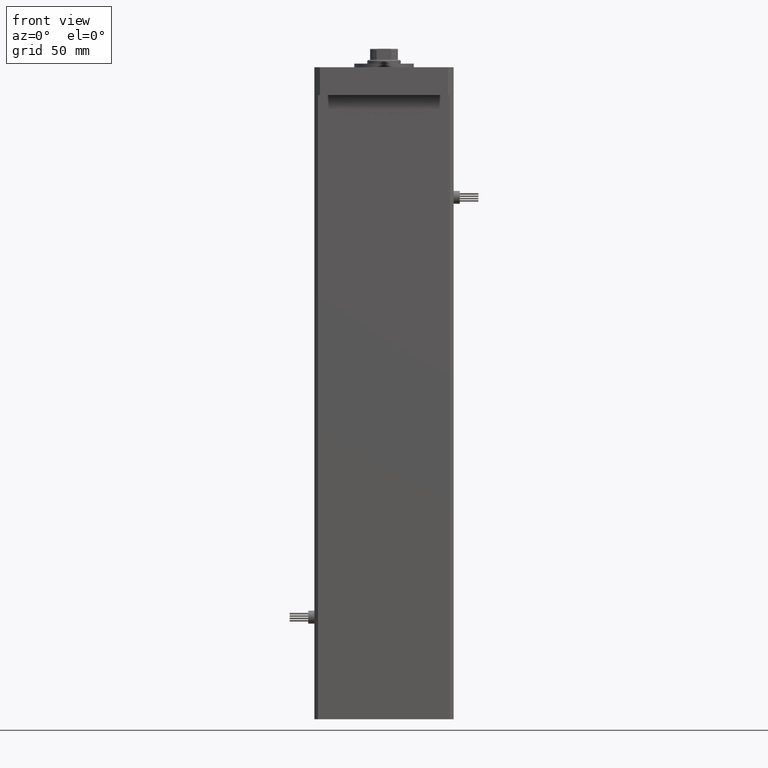
[diagram: clean part render]
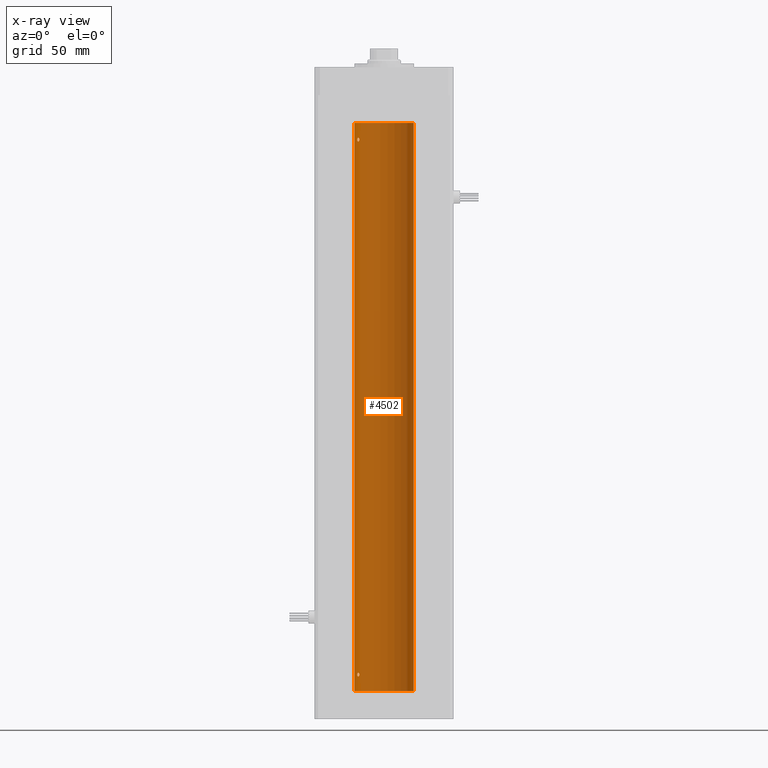
[diagram: x-ray — body ghosted, one internal face saturated and labeled with its STEP entity id]
A machine part, front view, then the same camera in x-ray: the body is ghosted and one INTERNAL B-rep face — a face not visible from any outside direction — is saturated and labeled: STEP entity #4502.
In plain terms, the highlighted cylindrical surface (edge-blend (fillet) strip) has radius 16 mm, axis along (-0, -0, -1).
Its self-contained STEP definition (entity closure, byte-faithful):
#104 = CARTESIAN_POINT ( 'NONE',  ( -13.22875655532295802, 8.999999999999996447, 297.0000000000000000 ) ) ;
#208 = CARTESIAN_POINT ( 'NONE',  ( -14.17576283486774535, 7.420212263225985261, 9.825253034304354927 ) ) ;
#403 = CARTESIAN_POINT ( 'NONE',  ( -13.70481462797716610, 8.258098555717531042, 296.0259974772911278 ) ) ;
#510 = CARTESIAN_POINT ( 'NONE',  ( -14.31650799088418324, 7.144337649771912879, 9.535522627373689275 ) ) ;
#793 = CARTESIAN_POINT ( 'NONE',  ( -13.22875655532295447, 8.999999999999996447, 9.000000000000000000 ) ) ;
#1250 = CARTESIAN_POINT ( 'NONE',  ( -13.23400746336172595, 8.992294519018086518, 296.8578145590230406 ) ) ;
#1813 = VERTEX_POINT ( 'NONE', #38744 ) ;
#2822 = CARTESIAN_POINT ( 'NONE',  ( -14.17528142432533755, 7.421143801852455368, 8.173943073538659121 ) ) ;
#3671 = CARTESIAN_POINT ( 'NONE',  ( -13.32426099938365027, 8.858246960865852060, 8.468874877532968526 ) ) ;
#4290 = ORIENTED_EDGE ( 'NONE', *, *, #36191, .F. ) ;
#4502 = ADVANCED_FACE ( 'NONE', ( #11596, #42196, #20457 ), #27448, .F. ) ;
#4788 = CARTESIAN_POINT ( 'NONE',  ( -13.98878315975729159, 7.767347947480346626, 9.980546143261280534 ) ) ;
#4977 = CARTESIAN_POINT ( 'NONE',  ( -16.00000000000000000, 0.000000000000000000, 306.0000000000000000 ) ) ;
#5368 = CARTESIAN_POINT ( 'NONE',  ( -14.38749456993815912, 6.999999999999997335, 9.000000000000000000 ) ) ;
#5845 = CARTESIAN_POINT ( 'NONE',  ( -13.37741691572085578, 8.778212469423003483, 297.6408828602270660 ) ) ;
#7122 = CARTESIAN_POINT ( 'NONE',  ( -14.38749456993815912, 6.999999999999997335, 9.000000000000000000 ) ) ;
#7395 = CARTESIAN_POINT ( 'NONE',  ( -13.22875655532295092, 8.999999999999994671, 8.929565622361636201 ) ) ;
#7803 = ORIENTED_EDGE ( 'NONE', *, *, #18863, .F. ) ;
#7874 = VERTEX_POINT ( 'NONE', #55957 ) ;
#8231 = CARTESIAN_POINT ( 'NONE',  ( -13.98699950016872151, 7.770591669637119558, 8.018476816648481886 ) ) ;
#9270 = CARTESIAN_POINT ( 'NONE',  ( -13.77582987033439643, 8.139210687602732364, 296.0021105458417878 ) ) ;
#9560 = CARTESIAN_POINT ( 'NONE',  ( -13.91838063522419411, 7.892966471903966941, 295.9981483133086044 ) ) ;
#9870 = CARTESIAN_POINT ( 'NONE',  ( -14.11618354197462288, 7.533333301880448474, 297.8932076519333236 ) ) ;
#9948 = CARTESIAN_POINT ( 'NONE',  ( -13.70792461986390620, 8.256614593260307444, 9.996621535642271184 ) ) ;
#10009 = VERTEX_POINT ( 'NONE', #12714 ) ;
#10127 = CARTESIAN_POINT ( 'NONE',  ( -14.17528142432530558, 7.421143801852505106, 296.1739430735385668 ) ) ;
#10143 = CARTESIAN_POINT ( 'NONE',  ( -13.98878315975730580, 7.767347947480322645, 297.9805461432613356 ) ) ;
#10424 = CARTESIAN_POINT ( 'NONE',  ( -14.27521483392931145, 7.227035590538596566, 297.6478598706881940 ) ) ;
#10711 = CARTESIAN_POINT ( 'NONE',  ( -13.91892506969884202, 7.891973478508828244, 298.0015521226323472 ) ) ;
#11596 = FACE_OUTER_BOUND ( 'NONE', #12689, .T. ) ;
#11746 = EDGE_CURVE ( 'NONE', #16806, #1813, #44766, .T. ) ;
#12269 = CARTESIAN_POINT ( 'NONE',  ( -13.26838749541400198, 8.941532915076040311, 8.656217793921369363 ) ) ;
#12689 = EDGE_LOOP ( 'NONE', ( #46728, #23245, #17441, #28376 ) ) ;
#12714 = CARTESIAN_POINT ( 'NONE',  ( -13.22875655532295447, 8.999999999999996447, 9.000000000000000000 ) ) ;
#13581 = CARTESIAN_POINT ( 'NONE',  ( -13.26838749541400375, 8.941532915076038535, 296.6562177939214280 ) ) ;
#13859 = CARTESIAN_POINT ( 'NONE',  ( -14.37250282441142701, 7.031013007322958863, 296.7168569960372793 ) ) ;
#15009 = CARTESIAN_POINT ( 'NONE',  ( -13.22875655532295802, 8.999999999999996447, 297.0000000000000000 ) ) ;
#16008 = CARTESIAN_POINT ( 'NONE',  ( -13.91838063522420832, 7.892966471903941184, 7.998148313308679036 ) ) ;
#16296 = CARTESIAN_POINT ( 'NONE',  ( -14.38749456993815556, 6.999999999999997335, 8.857147409635411250 ) ) ;
#16806 = VERTEX_POINT ( 'NONE', #37947 ) ;
#16846 = CARTESIAN_POINT ( 'NONE',  ( -13.23400746336172951, 8.992294519018086518, 8.857814559023015732 ) ) ;
#17441 = ORIENTED_EDGE ( 'NONE', *, *, #11746, .T. ) ;
#18441 = DIRECTION ( 'NONE',  ( -0.000000000000000000, -0.000000000000000000, -1.000000000000000000 ) ) ;
#18537 = CARTESIAN_POINT ( 'NONE',  ( -14.38749456993816445, 6.999999999999997335, 9.142625441524202756 ) ) ;
#18630 = CIRCLE ( 'NONE', #49737, 16.00000000000000000 ) ;
#18863 = EDGE_CURVE ( 'NONE', #10009, #21905, #36103, .T. ) ;
#19145 = B_SPLINE_CURVE_WITH_KNOTS ( 'NONE', 3,
 ( #15009, #49934, #45056, #45625, #5845, #36215, #49647, #10711, #10143, #9870, #44500, #10424, #31328, #22474, #22764, #53670 ),
 .UNSPECIFIED., .F., .F.,
 ( 4, 2, 2, 2, 2, 2, 2, 4 ),
 ( 0.003377672193071779450, 0.003799209865779922153, 0.004220747538488065290, 0.005063822883904251816, 0.005485360556612346380, 0.005906898229320440945, 0.006328435902028535509, 0.006749973574736630073 ),
 .UNSPECIFIED. ) ;
#19148 = CARTESIAN_POINT ( 'NONE',  ( 0.000000000000000000, 0.000000000000000000, 306.0000000000000000 ) ) ;
#20422 = CARTESIAN_POINT ( 'NONE',  ( 16.00000000000000000, 1.959434878635765131E-15, 306.0000000000000000 ) ) ;
#20457 = FACE_BOUND ( 'NONE', #32135, .T. ) ;
#20585 = CARTESIAN_POINT ( 'NONE',  ( -14.31660136508399184, 7.144151923086058176, 8.464621795444474017 ) ) ;
#20991 = DIRECTION ( 'NONE',  ( -0.000000000000000000, -0.000000000000000000, -1.000000000000000000 ) ) ;
#21136 = CARTESIAN_POINT ( 'NONE',  ( -13.25390108270225298, 8.962947079338388079, 8.721435762358455079 ) ) ;
#21905 = VERTEX_POINT ( 'NONE', #45233 ) ;
#21983 = CARTESIAN_POINT ( 'NONE',  ( -13.22875655532295447, 8.999999999999996447, 9.140644760917734146 ) ) ;
#22129 = VECTOR ( 'NONE', #20991, 1000.000000000000000 ) ;
#22164 = CARTESIAN_POINT ( 'NONE',  ( -14.31660136508397585, 7.144151923086089262, 296.4646217954444296 ) ) ;
#22267 = CARTESIAN_POINT ( 'NONE',  ( -14.27521483392929014, 7.227035590538633869, 9.647859870688195727 ) ) ;
#22474 = CARTESIAN_POINT ( 'NONE',  ( -14.37227256866306391, 7.031482256185694446, 297.2844572409763373 ) ) ;
#22541 = EDGE_CURVE ( 'NONE', #53939, #30546, #43003, .T. ) ;
#22562 = CARTESIAN_POINT ( 'NONE',  ( -13.37741691572085934, 8.778212469423014142, 9.640882860227099727 ) ) ;
#22651 = DIRECTION ( 'NONE',  ( -0.000000000000000000, 0.000000000000000000, 1.000000000000000000 ) ) ;
#22764 = CARTESIAN_POINT ( 'NONE',  ( -14.38749456993815734, 6.999999999999995559, 297.1426254415241601 ) ) ;
#23245 = ORIENTED_EDGE ( 'NONE', *, *, #53107, .T. ) ;
#23309 = CARTESIAN_POINT ( 'NONE',  ( -14.38749456993815912, 6.999999999999998224, 296.9999999999999432 ) ) ;
#23651 = CIRCLE ( 'NONE', #36442, 16.00000000000000000 ) ;
#25713 = CARTESIAN_POINT ( 'NONE',  ( -13.56386909142669950, 8.487613976483636691, 8.118224297996075478 ) ) ;
#26141 = ORIENTED_EDGE ( 'NONE', *, *, #38803, .F. ) ;
#26460 = CARTESIAN_POINT ( 'NONE',  ( -13.49759407097374009, 8.592283911330238055, 296.1840991521276010 ) ) ;
#26561 = CARTESIAN_POINT ( 'NONE',  ( -13.91892506969882959, 7.891973478508852224, 10.00155212263243953 ) ) ;
#26842 = CARTESIAN_POINT ( 'NONE',  ( -13.55800260393082546, 8.498809056167521803, 9.903643446210175227 ) ) ;
#27034 = CARTESIAN_POINT ( 'NONE',  ( -13.56386909142668351, 8.487613976483659783, 296.1182242979961075 ) ) ;
#27139 = CARTESIAN_POINT ( 'NONE',  ( -13.24976519864029179, 8.969293778684576779, 9.281535226335156707 ) ) ;
#27448 = CYLINDRICAL_SURFACE ( 'NONE', #52430, 16.00000000000000000 ) ;
#28376 = ORIENTED_EDGE ( 'NONE', *, *, #44166, .F. ) ;
#29052 = DIRECTION ( 'NONE',  ( -1.000000000000000000, 0.000000000000000000, 0.000000000000000000 ) ) ;
#29174 = CARTESIAN_POINT ( 'NONE',  ( -13.77582987033441064, 8.139210687602712824, 8.002110545841816247 ) ) ;
#30546 = VERTEX_POINT ( 'NONE', #55672 ) ;
#30915 = EDGE_CURVE ( 'NONE', #42671, #7874, #50418, .T. ) ;
#31328 = CARTESIAN_POINT ( 'NONE',  ( -14.31650799088419923, 7.144337649771897780, 297.5355226273737230 ) ) ;
#32135 = EDGE_LOOP ( 'NONE', ( #51605, #26141 ) ) ;
#32436 = DIRECTION ( 'NONE',  ( 1.000000000000000000, 0.000000000000000000, 0.000000000000000000 ) ) ;
#35043 = CARTESIAN_POINT ( 'NONE',  ( -13.22875655532295980, 8.999999999999996447, 296.9295656223616788 ) ) ;
#36103 = B_SPLINE_CURVE_WITH_KNOTS ( 'NONE', 3,
 ( #793, #21983, #27139, #39727, #22562, #26842, #9948, #26561, #4788, #39434, #208, #22267, #510, #44584, #18537, #5368 ),
 .UNSPECIFIED., .F., .F.,
 ( 4, 2, 2, 2, 2, 2, 2, 4 ),
 ( 0.003377672193071777282, 0.003799209865779874882, 0.004220747538487972482, 0.005063822883904168549, 0.005485360556612268318, 0.005906898229320367219, 0.006328435902028466120, 0.006749973574736565889 ),
 .UNSPECIFIED. ) ;
#36191 = EDGE_CURVE ( 'NONE', #21905, #10009, #43238, .T. ) ;
#36215 = CARTESIAN_POINT ( 'NONE',  ( -13.55800260393082368, 8.498809056167505815, 297.9036434462103102 ) ) ;
#36442 = AXIS2_PLACEMENT_3D ( 'NONE', #44383, #22651, #40108 ) ;
#37947 = CARTESIAN_POINT ( 'NONE',  ( -16.00000000000000000, 0.000000000000000000, 306.0000000000000000 ) ) ;
#38595 = CARTESIAN_POINT ( 'NONE',  ( -13.22875655532295447, 8.999999999999996447, 9.000000000000000000 ) ) ;
#38744 = CARTESIAN_POINT ( 'NONE',  ( -16.00000000000000000, 0.000000000000000000, 0.000000000000000000 ) ) ;
#38803 = EDGE_CURVE ( 'NONE', #7874, #42671, #19145, .T. ) ;
#39336 = CARTESIAN_POINT ( 'NONE',  ( -13.37674940693421632, 8.779234808442881288, 296.3602441571269424 ) ) ;
#39434 = CARTESIAN_POINT ( 'NONE',  ( -14.11618354197461400, 7.533333301880478672, 9.893207651933416003 ) ) ;
#39619 = CARTESIAN_POINT ( 'NONE',  ( -14.27547848986620060, 7.226527013162225899, 296.3525557301815070 ) ) ;
#39727 = CARTESIAN_POINT ( 'NONE',  ( -13.32457971225032445, 8.857769707964649797, 9.531999662746555302 ) ) ;
#40108 = DIRECTION ( 'NONE',  ( 1.000000000000000000, 0.000000000000000000, 0.000000000000000000 ) ) ;
#40475 = CARTESIAN_POINT ( 'NONE',  ( -13.25390108270225475, 8.962947079338395184, 296.7214357623585101 ) ) ;
#42122 = CARTESIAN_POINT ( 'NONE',  ( 0.000000000000000000, 0.000000000000000000, 306.0000000000000000 ) ) ;
#42196 = FACE_BOUND ( 'NONE', #48878, .T. ) ;
#42609 = VECTOR ( 'NONE', #18441, 1000.000000000000000 ) ;
#42671 = VERTEX_POINT ( 'NONE', #23309 ) ;
#43003 = LINE ( 'NONE', #20422, #22129 ) ;
#43238 = B_SPLINE_CURVE_WITH_KNOTS ( 'NONE', 3,
 ( #7122, #16296, #51207, #20585, #46349, #2822, #55220, #8231, #16008, #29174, #51478, #25713, #46628, #51768, #3671, #12269, #21136, #16846, #7395, #38595 ),
 .UNSPECIFIED., .F., .F.,
 ( 4, 2, 2, 2, 2, 2, 2, 2, 2, 4 ),
 ( 0.000000000000000000, 0.0004222090241339719976, 0.0008444180482679439952, 0.001266627072401915830, 0.001688836096535887990, 0.002111045120669860151, 0.002533254144803831660, 0.002955463168937803604, 0.003166567681004790660, 0.003377672193071777282 ),
 .UNSPECIFIED. ) ;
#44166 = EDGE_CURVE ( 'NONE', #30546, #1813, #23651, .T. ) ;
#44383 = CARTESIAN_POINT ( 'NONE',  ( 0.000000000000000000, 0.000000000000000000, 0.000000000000000000 ) ) ;
#44500 = CARTESIAN_POINT ( 'NONE',  ( -14.17576283486776312, 7.420212263225942628, 297.8252530343042963 ) ) ;
#44584 = CARTESIAN_POINT ( 'NONE',  ( -14.37227256866306213, 7.031482256185707769, 9.284457240976479397 ) ) ;
#44766 = LINE ( 'NONE', #4977, #42609 ) ;
#44768 = CARTESIAN_POINT ( 'NONE',  ( -13.32426099938365205, 8.858246960865844954, 296.4688748775329827 ) ) ;
#45038 = CARTESIAN_POINT ( 'NONE',  ( -14.38749456993815912, 6.999999999999999112, 296.8571474096354450 ) ) ;
#45056 = CARTESIAN_POINT ( 'NONE',  ( -13.24976519864029001, 8.969293778684578555, 297.2815352263352224 ) ) ;
#45233 = CARTESIAN_POINT ( 'NONE',  ( -14.38749456993815912, 6.999999999999997335, 9.000000000000000000 ) ) ;
#45625 = CARTESIAN_POINT ( 'NONE',  ( -13.32457971225032800, 8.857769707964646244, 297.5319996627466139 ) ) ;
#46349 = CARTESIAN_POINT ( 'NONE',  ( -14.27547848986622014, 7.226527013162185931, 8.352555730181528304 ) ) ;
#46628 = CARTESIAN_POINT ( 'NONE',  ( -13.49759407097374897, 8.592283911330223845, 8.184099152127670251 ) ) ;
#46728 = ORIENTED_EDGE ( 'NONE', *, *, #22541, .F. ) ;
#47065 = CARTESIAN_POINT ( 'NONE',  ( 16.00000000000000000, 1.959434878635765131E-15, 306.0000000000000000 ) ) ;
#48495 = CARTESIAN_POINT ( 'NONE',  ( -14.11621438951176621, 7.533308783217031568, 296.1065710718395394 ) ) ;
#48785 = CARTESIAN_POINT ( 'NONE',  ( -13.98699950016870908, 7.770591669637139987, 296.0184768166483877 ) ) ;
#48878 = EDGE_LOOP ( 'NONE', ( #4290, #7803 ) ) ;
#49647 = CARTESIAN_POINT ( 'NONE',  ( -13.70792461986392397, 8.256614593260286128, 297.9966215356422481 ) ) ;
#49737 = AXIS2_PLACEMENT_3D ( 'NONE', #42122, #50441, #32436 ) ;
#49934 = CARTESIAN_POINT ( 'NONE',  ( -13.22875655532296157, 8.999999999999994671, 297.1406447609177803 ) ) ;
#50418 = B_SPLINE_CURVE_WITH_KNOTS ( 'NONE', 3,
 ( #53654, #45038, #13859, #22164, #39619, #10127, #48495, #48785, #9560, #9270, #403, #27034, #26460, #39336, #44768, #13581, #40475, #1250, #35043, #104 ),
 .UNSPECIFIED., .F., .F.,
 ( 4, 2, 2, 2, 2, 2, 2, 2, 2, 4 ),
 ( 5.629170997246951751E-17, 0.0004222090241340034937, 0.0008444180482679507172, 0.001266627072401898049, 0.001688836096535845273, 0.002111045120669792496, 0.002533254144803739720, 0.002955463168937686510, 0.003166567681004732980, 0.003377672193071779450 ),
 .UNSPECIFIED. ) ;
#50441 = DIRECTION ( 'NONE',  ( -0.000000000000000000, 0.000000000000000000, 1.000000000000000000 ) ) ;
#51207 = CARTESIAN_POINT ( 'NONE',  ( -14.37250282441143767, 7.031013007322936659, 8.716856996037261496 ) ) ;
#51478 = CARTESIAN_POINT ( 'NONE',  ( -13.70481462797718031, 8.258098555717506173, 8.025997477291133109 ) ) ;
#51605 = ORIENTED_EDGE ( 'NONE', *, *, #30915, .F. ) ;
#51768 = CARTESIAN_POINT ( 'NONE',  ( -13.37674940693422521, 8.779234808442870630, 8.360244157126784259 ) ) ;
#52430 = AXIS2_PLACEMENT_3D ( 'NONE', #19148, #55382, #29052 ) ;
#53107 = EDGE_CURVE ( 'NONE', #53939, #16806, #18630, .T. ) ;
#53654 = CARTESIAN_POINT ( 'NONE',  ( -14.38749456993815912, 6.999999999999998224, 296.9999999999999432 ) ) ;
#53670 = CARTESIAN_POINT ( 'NONE',  ( -14.38749456993815912, 6.999999999999998224, 296.9999999999999432 ) ) ;
#53939 = VERTEX_POINT ( 'NONE', #47065 ) ;
#55220 = CARTESIAN_POINT ( 'NONE',  ( -14.11621438951177332, 7.533308783217010252, 8.106571071839512754 ) ) ;
#55382 = DIRECTION ( 'NONE',  ( -0.000000000000000000, -0.000000000000000000, -1.000000000000000000 ) ) ;
#55672 = CARTESIAN_POINT ( 'NONE',  ( 16.00000000000000000, 1.959434878635765131E-15, 0.000000000000000000 ) ) ;
#55957 = CARTESIAN_POINT ( 'NONE',  ( -13.22875655532295802, 8.999999999999996447, 297.0000000000000000 ) ) ;